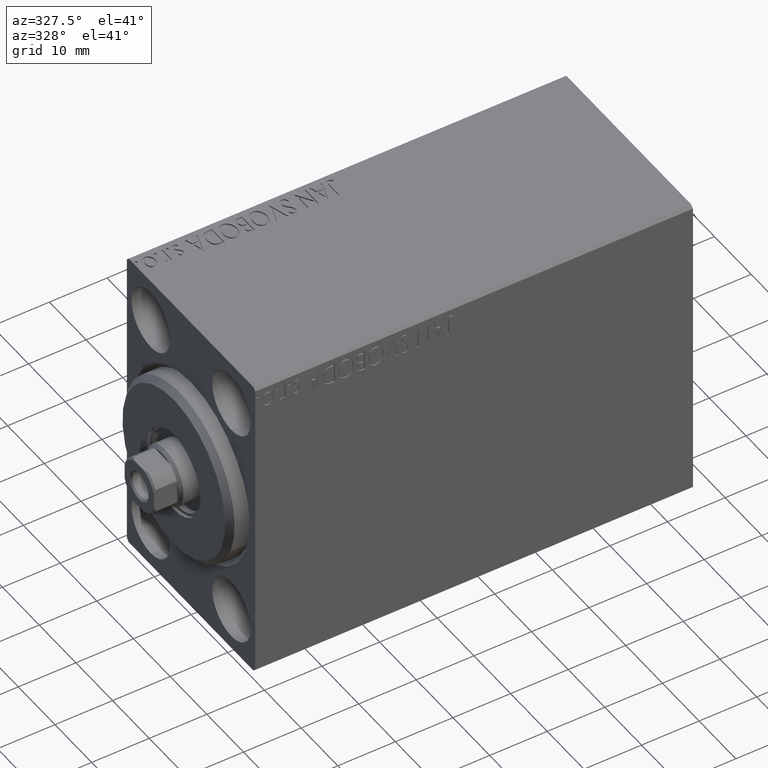
[diagram: clean part render]
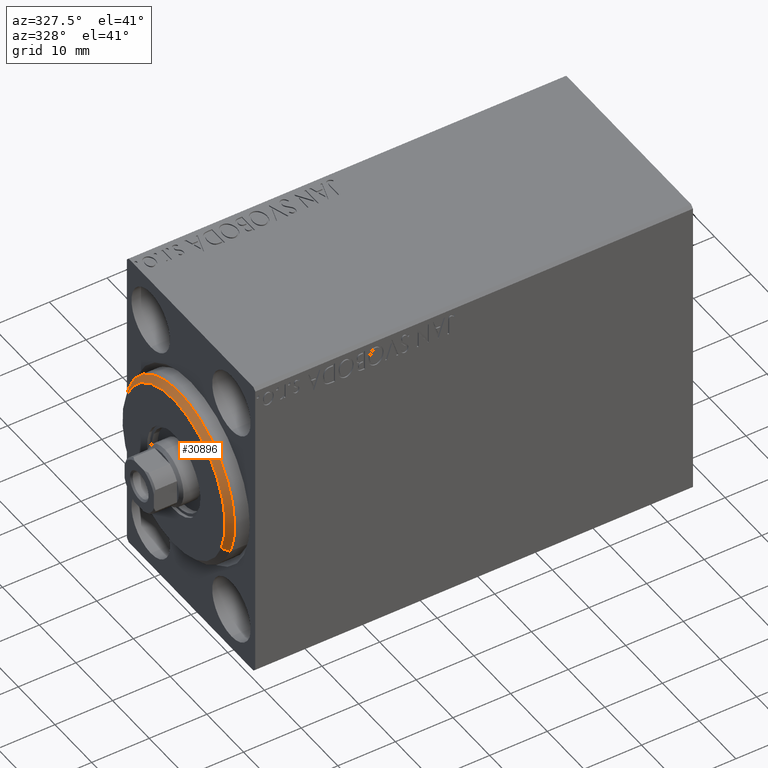
[diagram: same view with one face highlighted and labeled with its STEP entity id]
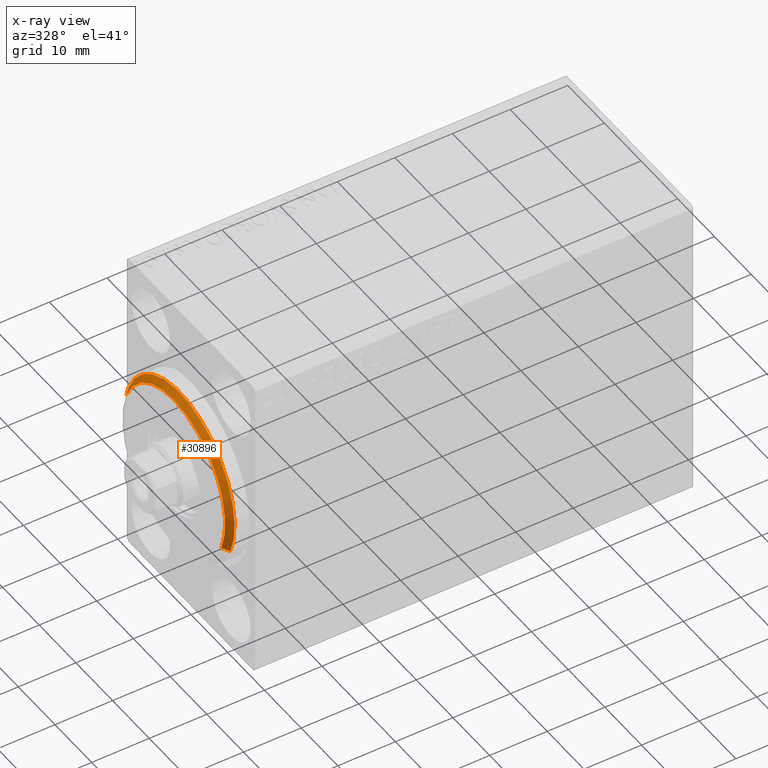
[diagram: x-ray of the same camera — body ghosted, the highlighted face saturated]
A machine part, auxiliary view. The second image highlights one B-rep face of the part: STEP entity #30896.
The next image is the same camera in x-ray: the body ghosted, the highlighted face saturated — about 0% of this face is hidden behind the body in this view.
In plain terms, the highlighted conical surface has half-angle 45 deg.
Its self-contained STEP definition (entity closure, byte-faithful):
#192 = ORIENTED_EDGE ( 'NONE', *, *, #37328, .F. ) ;
#689 = VERTEX_POINT ( 'NONE', #29659 ) ;
#3453 = EDGE_CURVE ( 'NONE', #3816, #41143, #7987, .T. ) ;
#3816 = VERTEX_POINT ( 'NONE', #20330 ) ;
#5384 = VECTOR ( 'NONE', #23247, 999.9999999999998863 ) ;
#5657 = CARTESIAN_POINT ( 'NONE',  ( 1.999999999999995781, 0.000000000000000000, 0.000000000000000000 ) ) ;
#7211 = CIRCLE ( 'NONE', #34139, 13.99999999999999645 ) ;
#7584 = AXIS2_PLACEMENT_3D ( 'NONE', #5657, #16080, #33380 ) ;
#7987 = LINE ( 'NONE', #28190, #28839 ) ;
#10771 = CARTESIAN_POINT ( 'NONE',  ( 1.999999999999995781, 0.000000000000000000, 15.00000000000000000 ) ) ;
#12810 = LINE ( 'NONE', #42553, #5384 ) ;
#13749 = CARTESIAN_POINT ( 'NONE',  ( 3.000000000000000000, 0.000000000000000000, 0.000000000000000000 ) ) ;
#15602 = CARTESIAN_POINT ( 'NONE',  ( 3.000000000000000000, 1.775737858763662015E-15, -13.99999999999999645 ) ) ;
#16004 = FACE_OUTER_BOUND ( 'NONE', #37321, .T. ) ;
#16080 = DIRECTION ( 'NONE',  ( -1.000000000000000000, 0.000000000000000000, 0.000000000000000000 ) ) ;
#17775 = EDGE_CURVE ( 'NONE', #3816, #24592, #7211, .T. ) ;
#19957 = ORIENTED_EDGE ( 'NONE', *, *, #29327, .F. ) ;
#20330 = CARTESIAN_POINT ( 'NONE',  ( 3.000000000000000000, 0.000000000000000000, 13.99999999999999645 ) ) ;
#21751 = DIRECTION ( 'NONE',  ( -0.7071067811865482389, 0.000000000000000000, 0.7071067811865469066 ) ) ;
#21942 = ORIENTED_EDGE ( 'NONE', *, *, #3453, .T. ) ;
#23247 = DIRECTION ( 'NONE',  ( -0.7071067811865482389, 8.659560562354926695E-17, -0.7071067811865469066 ) ) ;
#23858 = ORIENTED_EDGE ( 'NONE', *, *, #17775, .F. ) ;
#23867 = AXIS2_PLACEMENT_3D ( 'NONE', #32652, #32223, #25130 ) ;
#24401 = DIRECTION ( 'NONE',  ( 1.000000000000000000, -0.000000000000000000, 0.000000000000000000 ) ) ;
#24592 = VERTEX_POINT ( 'NONE', #15602 ) ;
#25130 = DIRECTION ( 'NONE',  ( 0.000000000000000000, 0.000000000000000000, 1.000000000000000000 ) ) ;
#26747 = CIRCLE ( 'NONE', #7584, 15.00000000000000000 ) ;
#27716 = DIRECTION ( 'NONE',  ( 0.000000000000000000, 0.000000000000000000, -1.000000000000000000 ) ) ;
#28190 = CARTESIAN_POINT ( 'NONE',  ( 3.000000000000000000, 0.000000000000000000, 13.99999999999999645 ) ) ;
#28839 = VECTOR ( 'NONE', #21751, 999.9999999999998863 ) ;
#29327 = EDGE_CURVE ( 'NONE', #24592, #689, #12810, .T. ) ;
#29659 = CARTESIAN_POINT ( 'NONE',  ( 1.999999999999995781, 1.836970198721029589E-15, -15.00000000000000000 ) ) ;
#30896 = ADVANCED_FACE ( 'NONE', ( #16004 ), #35880, .T. ) ;
#32223 = DIRECTION ( 'NONE',  ( -1.000000000000000000, 0.000000000000000000, 0.000000000000000000 ) ) ;
#32652 = CARTESIAN_POINT ( 'NONE',  ( 3.000000000000000000, 0.000000000000000000, 0.000000000000000000 ) ) ;
#33380 = DIRECTION ( 'NONE',  ( 0.000000000000000000, 0.000000000000000000, -1.000000000000000000 ) ) ;
#34139 = AXIS2_PLACEMENT_3D ( 'NONE', #13749, #24401, #27716 ) ;
#35880 = CONICAL_SURFACE ( 'NONE', #23867, 13.99999999999999645, 0.7853981633974473908 ) ;
#37321 = EDGE_LOOP ( 'NONE', ( #19957, #23858, #21942, #192 ) ) ;
#37328 = EDGE_CURVE ( 'NONE', #689, #41143, #26747, .T. ) ;
#41143 = VERTEX_POINT ( 'NONE', #10771 ) ;
#42553 = CARTESIAN_POINT ( 'NONE',  ( 3.000000000000000000, 1.714505518806294244E-15, -13.99999999999999645 ) ) ;